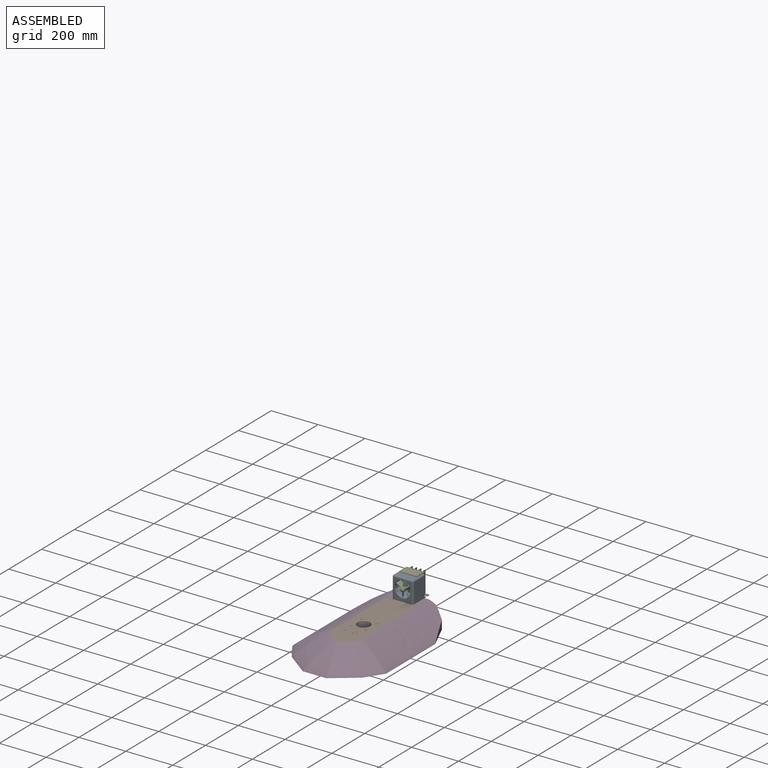
[diagram: assembled view]
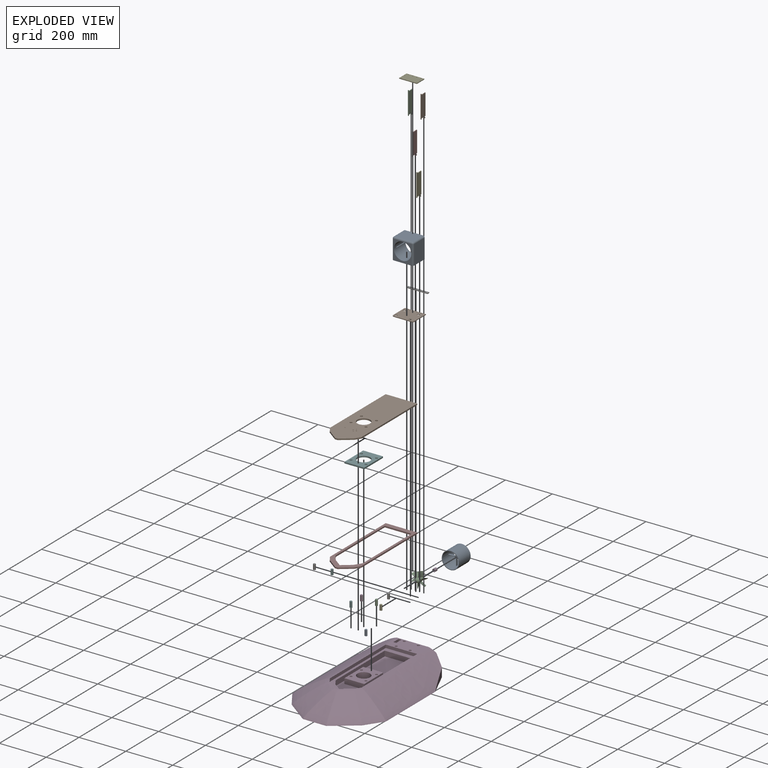
[diagram: exploded view]
GUIDED TOUR — MATED ASSEMBLY (Onshape document 7acfbcd206be1fce4d0c6893, AutoMate assembly 7acfbcd206be1fce4d0c6893_8e14f6b1c309a6c6db7eb92d_22dd7e8f04754dd25be5041a_default)

This assembly has 23 components, labeled P0..P22 below (a component is one placed occurrence of a part; the same part can appear more than once), held together by 28 mates. A mate is a constraint between two components; its type names the relative motion it leaves free:
  FASTENED — locks the two components together rigidly (no relative motion),
  REVOLUTE — leaves rotation about the listed axis free (a hinge),
  SLIDER — leaves translation along the listed axis free.
Axis/direction vectors are unit vectors and 'through' points are millimeter coordinates, both in the assembly's world frame.

MATES
  1. FASTENED "Fastened 8": P8 <-> P3, direction (0.000, 0.000, -1.000) through (50.37, 21.12, -48.16) mm
  2. SLIDER "Slider 1": P3 <-> P17, axis (0.000, 0.000, -1.000) through (85.71, 283.12, -31.66) mm
  3. FASTENED "Fastened 9": P5 <-> P3, direction (0.000, 0.000, -1.000) through (-13.63, 21.12, -48.16) mm
  4. REVOLUTE "Revolute 12": P18 <-> P20, axis (0.000, 0.000, 1.000) through (-3.63, 357.12, 71.84) mm
  5. FASTENED "Fastened 7": P15 <-> P3, direction (0.000, 0.000, 1.000) through (85.71, 283.12, -38.16) mm
  6. FASTENED "Fastened 6": P0 <-> P12, direction (0.000, 0.000, -1.000) through (-11.63, 293.12, -13.16) mm
  7. REVOLUTE "Revolute 2": P7 <-> P1, axis (0.000, 0.000, -1.000) through (14.37, 357.12, -26.16) mm
  8. REVOLUTE "Revolute 7": P6 <-> P4, axis (0.000, 0.000, -1.000) through (31.61, 377.11, -25.76) mm
  9. FASTENED "Fastened 3": P12 <-> P3, direction (0.000, 0.000, -1.000) through (-11.63, 293.12, -35.16) mm
  10. FASTENED "Fastened 14": P16 <-> P19, direction (0.000, -1.000, 0.000) through (23.37, 318.12, 23.34) mm
  11. FASTENED "Fastened 12": P13 <-> P3, direction (0.000, 0.000, 1.000) through (-13.63, 85.12, -32.16) mm
  12. FASTENED "Fastened 1": P21 <-> P3, direction (0.000, 0.000, -1.000) through (48.37, 343.12, -35.16) mm
  13. REVOLUTE "Revolute 8": P6 <-> P9, axis (0.000, 0.000, -1.000) through (49.61, 377.11, -25.76) mm
  14. REVOLUTE "Revolute 11": P7 <-> P20, axis (0.000, 0.000, 1.000) through (14.37, 357.12, 71.84) mm
  15. FASTENED "Fastened 4": P22 <-> P3, direction (0.000, 0.000, -1.000) through (-11.63, 343.12, -35.16) mm
  16. FASTENED "Fastened 10": P11 <-> P3, direction (0.000, 0.000, -1.000) through (-13.63, 85.12, -48.16) mm
  17. FASTENED "Fastened 5": P1 <-> P3, direction (0.000, 0.000, -1.000) through (-11.63, 293.12, -25.16) mm
  18. REVOLUTE "Revolute 5": P18 <-> P6, axis (0.000, 0.000, -1.000) through (-4.39, 377.11, -29.76) mm
  19. FASTENED "Fastened 2": P14 <-> P3, direction (0.000, 0.000, -1.000) through (48.37, 293.12, -35.16) mm
  20. REVOLUTE "Revolute 4": P9 <-> P1, axis (0.000, 0.000, -1.000) through (50.37, 357.12, -26.16) mm
  21. REVOLUTE "Revolute 9": P9 <-> P20, axis (0.000, 0.000, 1.000) through (50.37, 357.12, 71.84) mm
  22. REVOLUTE "Revolute 10": P4 <-> P20, axis (0.000, 0.000, 1.000) through (32.37, 357.12, 71.84) mm
  23. REVOLUTE "Revolute 6": P6 <-> P7, axis (0.000, 0.000, -1.000) through (13.61, 377.11, -25.76) mm
  24. REVOLUTE "Revolute 1": P18 <-> P1, axis (0.000, 0.000, -1.000) through (-3.63, 357.12, -26.16) mm
  25. FASTENED "Fastened 13": P20 <-> P0, direction (0.000, 0.000, -1.000) through (61.37, 316.12, 67.84) mm
  26. FASTENED "Fastened 11": P2 <-> P3, direction (0.000, 0.000, -1.000) through (50.37, 85.12, -48.16) mm
  27. REVOLUTE "Revolute 13": P10 <-> P19, axis (0.000, 1.000, 0.000) through (23.37, 313.12, 23.34) mm
  28. REVOLUTE "Revolute 3": P4 <-> P1, axis (0.000, 0.000, -1.000) through (32.37, 357.12, -26.16) mm

ASSEMBLY ORDER
  1. P8 — the base component [order verified]
  2. P5 [order verified]
  3. P2 [order verified]
  4. P11 [order verified]
  5. P13 [order verified]
  6. P10 [order verified]
  7. P19 [order verified]
  8. P15 [order verified]
  9. P17 [order verified]
  10. P3 [order verified]
  11. P16 [order verified]
  12. P9 [order verified]
  13. P4 [order verified]
  14. P7 [order verified]
  15. P18 [order verified]
  16. P0 [order verified]
  17. P1 [order verified]
  18. P6 [order verified]
  19. P14 [order verified]
  20. P21 [order verified]
  21. P12 [order verified]
  22. P20 [order verified]
  23. P22 [order verified]
(P3, P13, P19 verified with a relaxed clearance tolerance: the source model stores slight part interference there.)
Order-tag legend:
  [order verified] — this step's position reverses a verified removal order: the component was checked to insert without passing through the ones already placed.

Of the 23 components, 1 carries the full construction recipe — the FeatureScript program that regenerates the part's solid from scratch; the rest are supplied as boundary geometry only.
Because this assembly has more than 12 components, the tour below covers the 12 most significant ones individually (every recipe-attached component first, then the largest by part volume), in assembly order; the remaining 11 are summarized together in a grouped section at the end.
Each toured component is shown spotlighted twice — in the assembled view, then in the exploded view, where a leader line traces a displaced component back to its assembled socket (saturated green if recipe-attached, orange if geometry-only; every other component desaturated gray) — followed by its recipe or geometry summary and the mates that hold it.
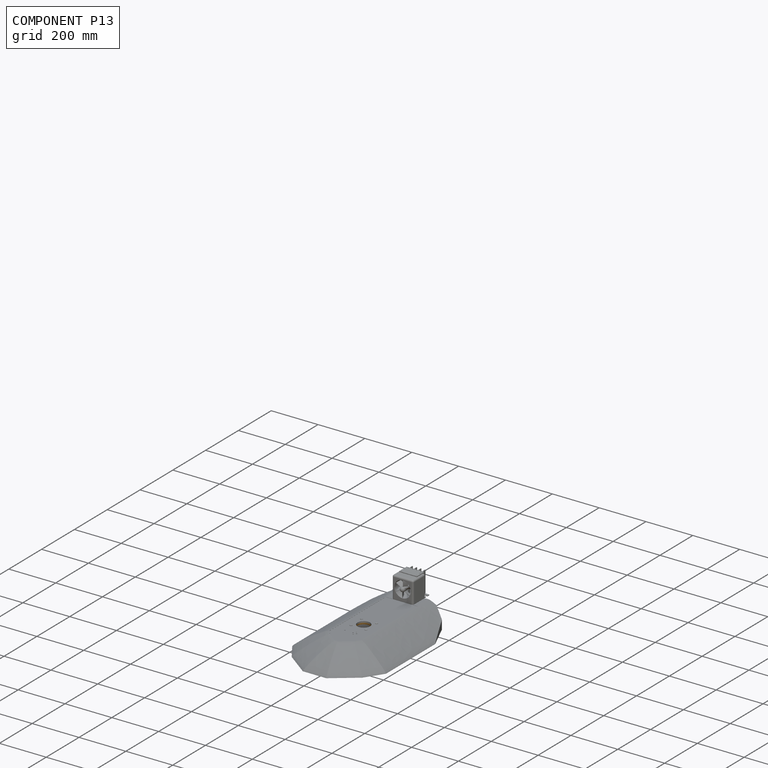
[diagram: component P13 — assembled]
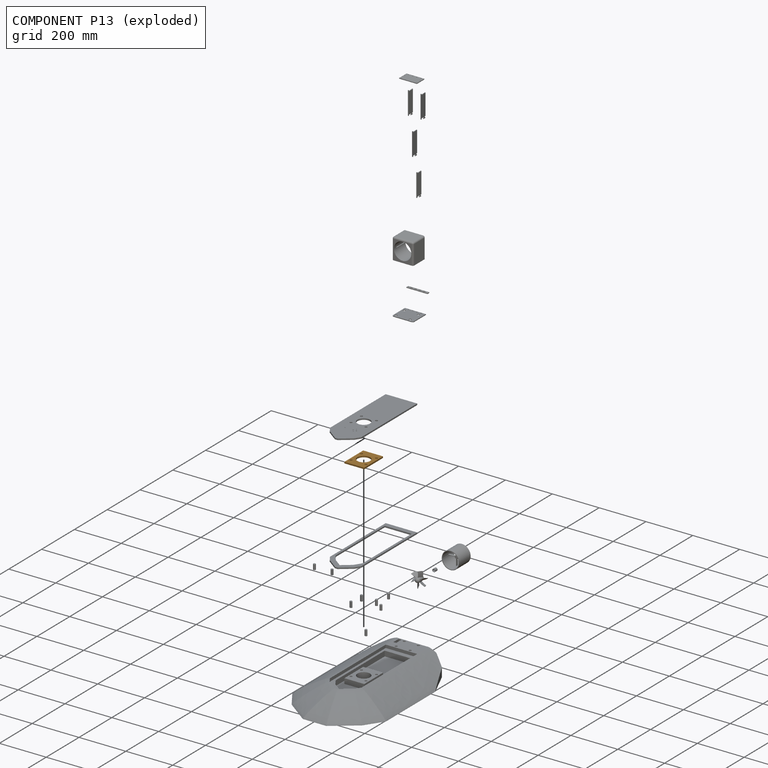
[diagram: component P13 — exploded]
COMPONENT P13 — geometry summary (no construction recipe available for this part):
  bounding box: 114.7 x 84.7 x 6.0 mm
  B-rep topology: 1 solid, 11 faces, 54 edges
  volume: 42373 mm^3 (73% of its bounding box)
  symmetry: 2-fold rotationally symmetric about the x axis; 2-fold rotationally symmetric about the y axis; 2-fold rotationally symmetric about the z axis; mirror-symmetric across its x mid-plane, y mid-plane, z mid-plane
Held by: FASTENED mate "Fastened 12" to P3.
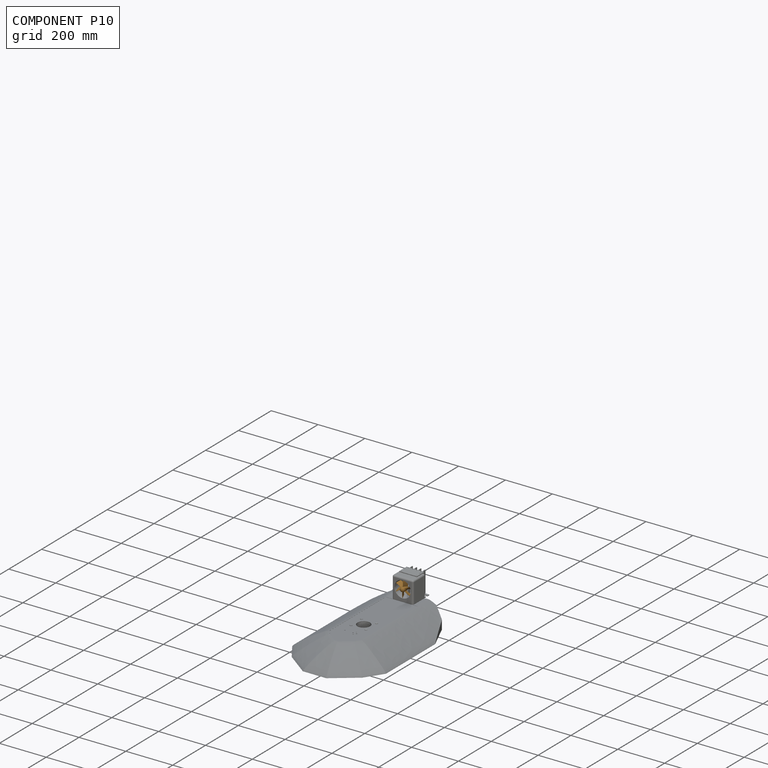
[diagram: component P10 — assembled]
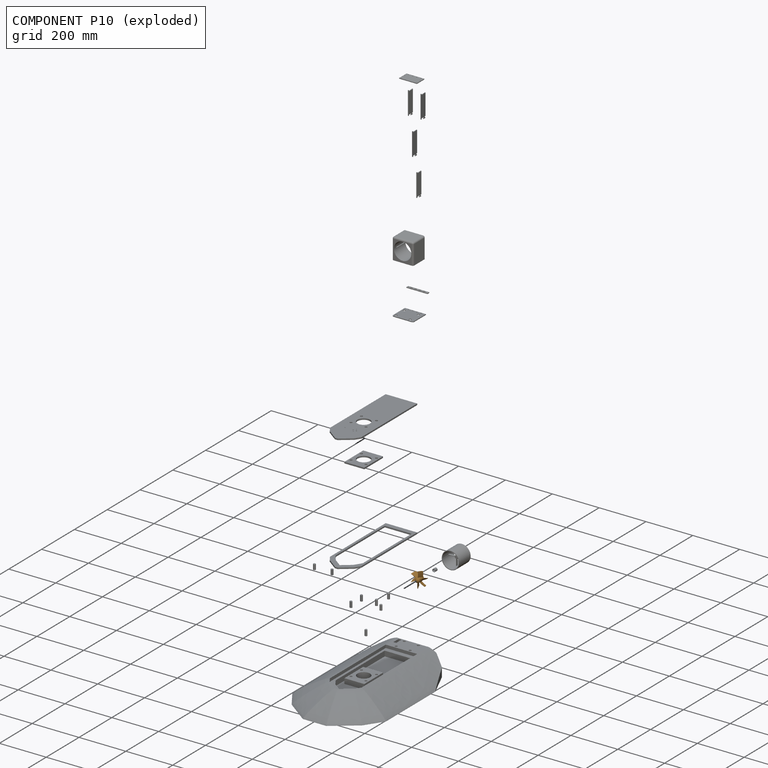
[diagram: component P10 — exploded]
COMPONENT P10 — geometry summary (no construction recipe available for this part):
  bounding box: 67.0 x 61.7 x 40.0 mm
  B-rep topology: 1 solid, 46 faces, 237 edges
  volume: 12002 mm^3 (7% of its bounding box)
  symmetry: 6-fold rotationally symmetric about the z axis
Held by: REVOLUTE mate "Revolute 13" to P19.
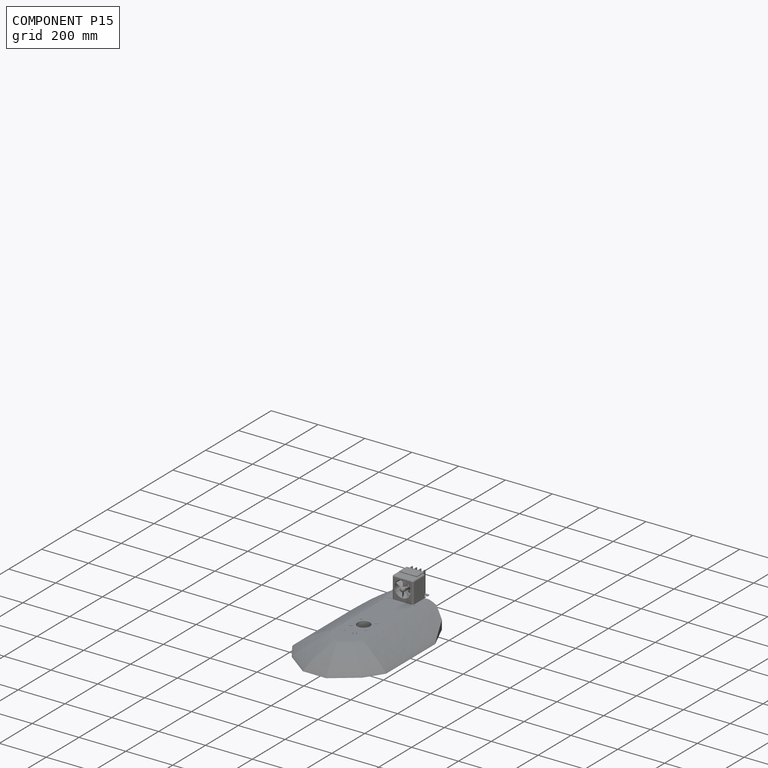
[diagram: component P15 — assembled]
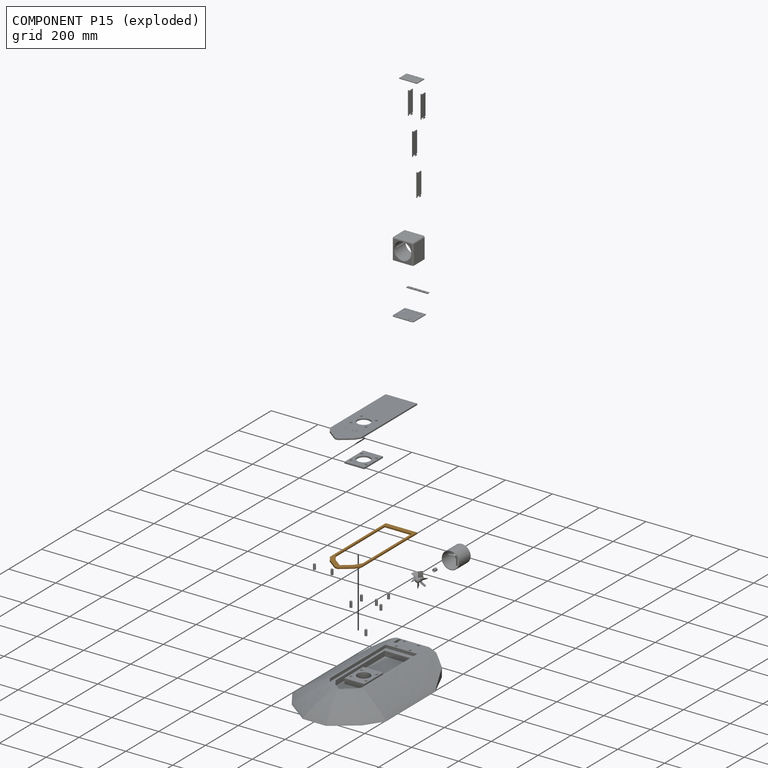
[diagram: component P15 — exploded]
COMPONENT P15 — geometry summary (no construction recipe available for this part):
  bounding box: 397.3 x 134.7 x 6.0 mm
  B-rep topology: 1 solid, 17 faces, 90 edges
  volume: 74186 mm^3 (23% of its bounding box)
  symmetry: 2-fold rotationally symmetric about the y axis; mirror-symmetric across its x mid-plane, z mid-plane
Held by: FASTENED mate "Fastened 7" to P3.
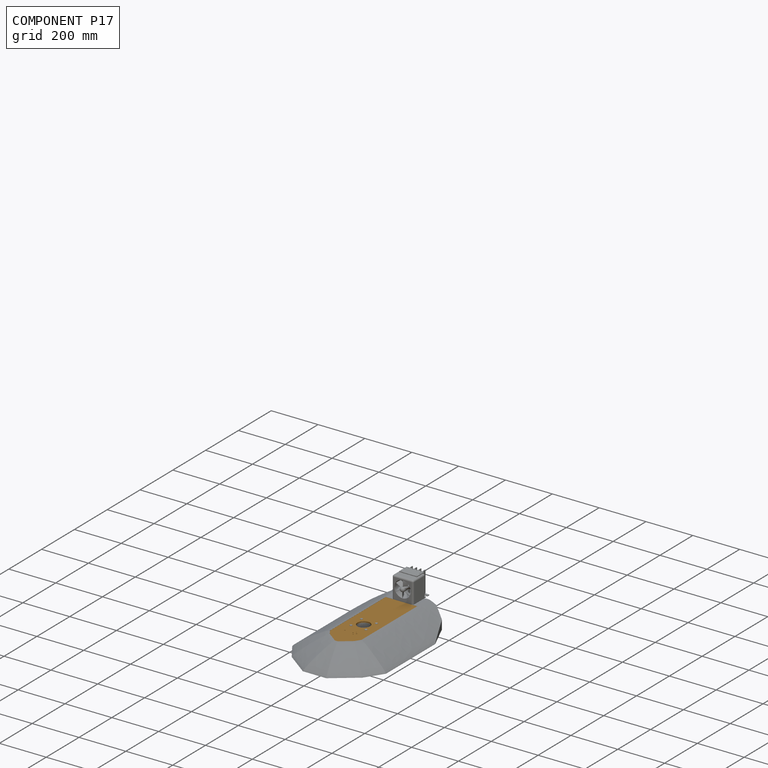
[diagram: component P17 — assembled]
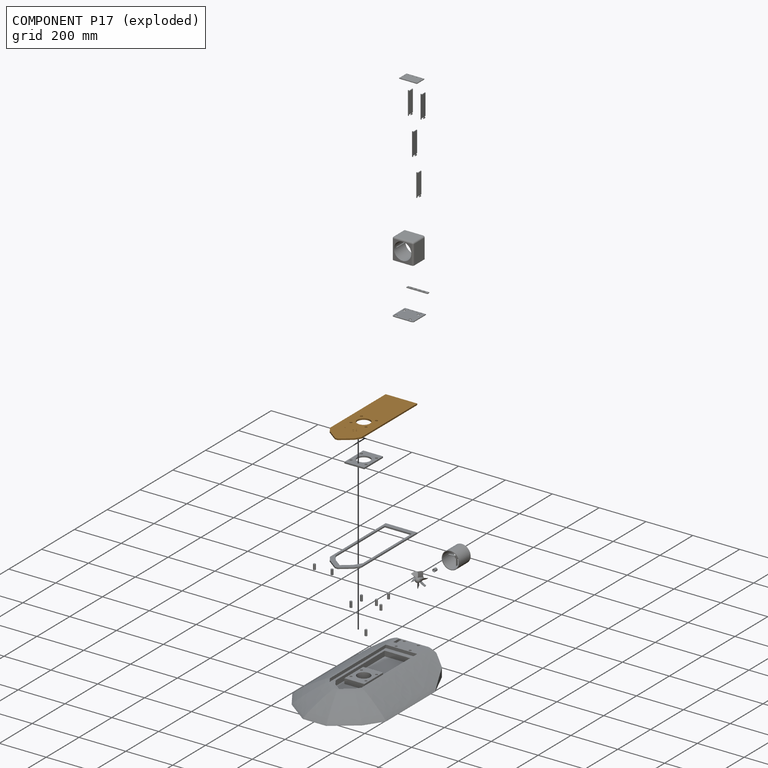
[diagram: component P17 — exploded]
COMPONENT P17 — geometry summary (no construction recipe available for this part):
  bounding box: 397.3 x 134.7 x 6.0 mm
  B-rep topology: 1 solid, 20 faces, 108 edges
  volume: 286712 mm^3 (89% of its bounding box)
  symmetry: mirror-symmetric across its z mid-plane
Held by: SLIDER mate "Slider 1" to P3.
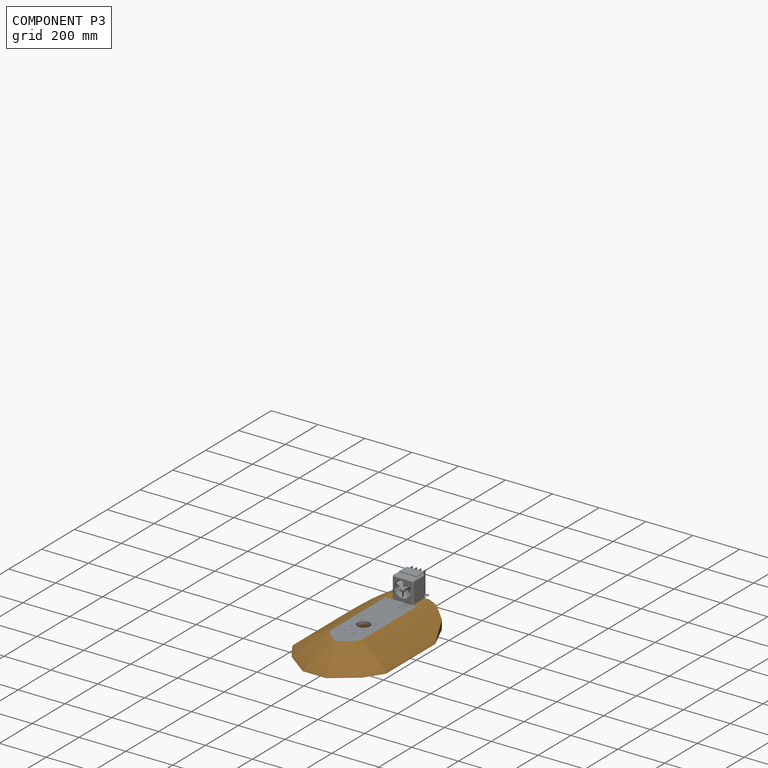
[diagram: component P3 — assembled]
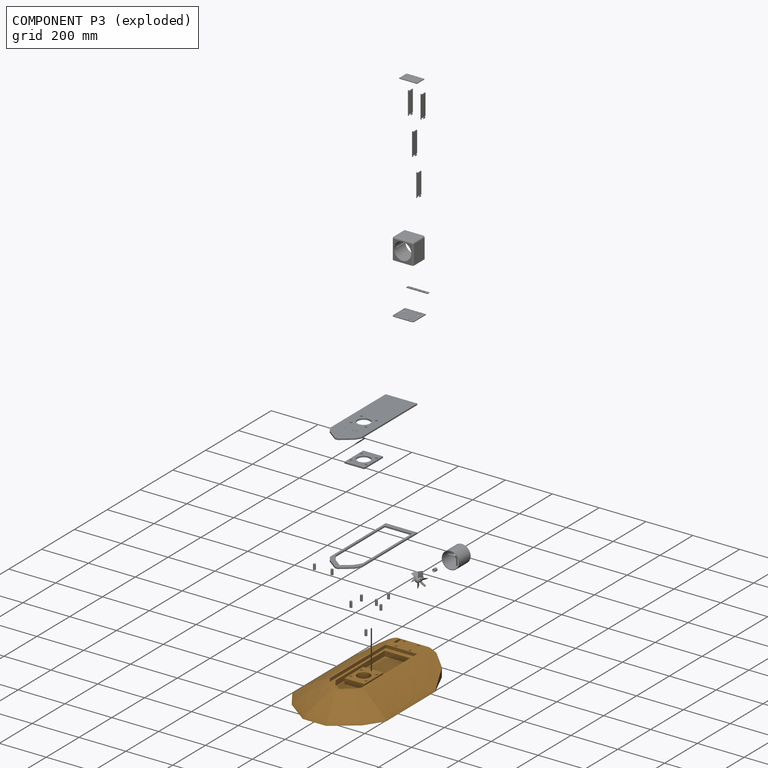
[diagram: component P3 — exploded]
COMPONENT P3 — geometry summary (no construction recipe available for this part):
  bounding box: 626.3 x 402.5 x 80.0 mm
  B-rep topology: 1 solid, 85 faces, 422 edges
  volume: 10002666 mm^3 (50% of its bounding box)
Held by: FASTENED mate "Fastened 8" to P8; SLIDER mate "Slider 1" to P17; FASTENED mate "Fastened 9" to P5; FASTENED mate "Fastened 7" to P15; FASTENED mate "Fastened 3" to P12; FASTENED mate "Fastened 12" to P13; FASTENED mate "Fastened 1" to P21; FASTENED mate "Fastened 4" to P22; FASTENED mate "Fastened 10" to P11; FASTENED mate "Fastened 5" to P1; FASTENED mate "Fastened 2" to P14; FASTENED mate "Fastened 11" to P2.
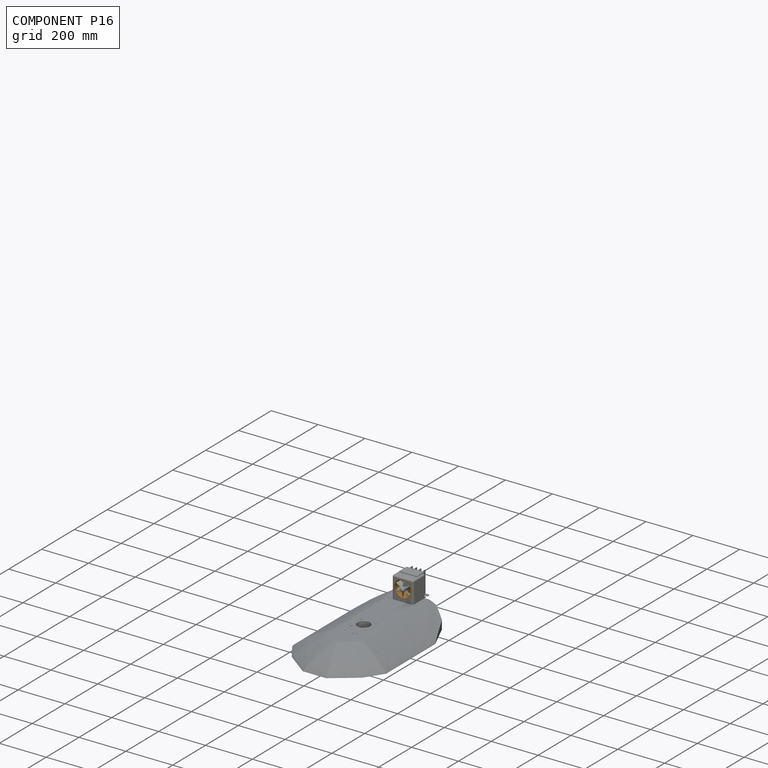
[diagram: component P16 — assembled]
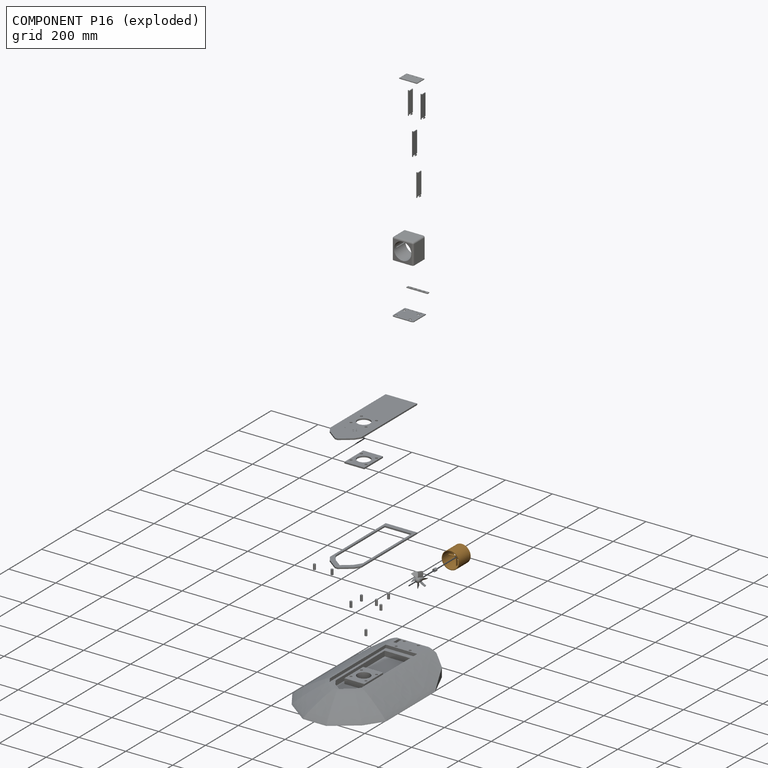
[diagram: component P16 — exploded]
COMPONENT P16 — geometry summary (no construction recipe available for this part):
  bounding box: 74.5 x 74.5 x 70.0 mm
  B-rep topology: 1 solid, 18 faces, 114 edges
  volume: 42455 mm^3 (11% of its bounding box)
  symmetry: 4-fold rotationally symmetric about the z axis; mirror-symmetric across its x mid-plane, y mid-plane
Held by: FASTENED mate "Fastened 14" to P19.
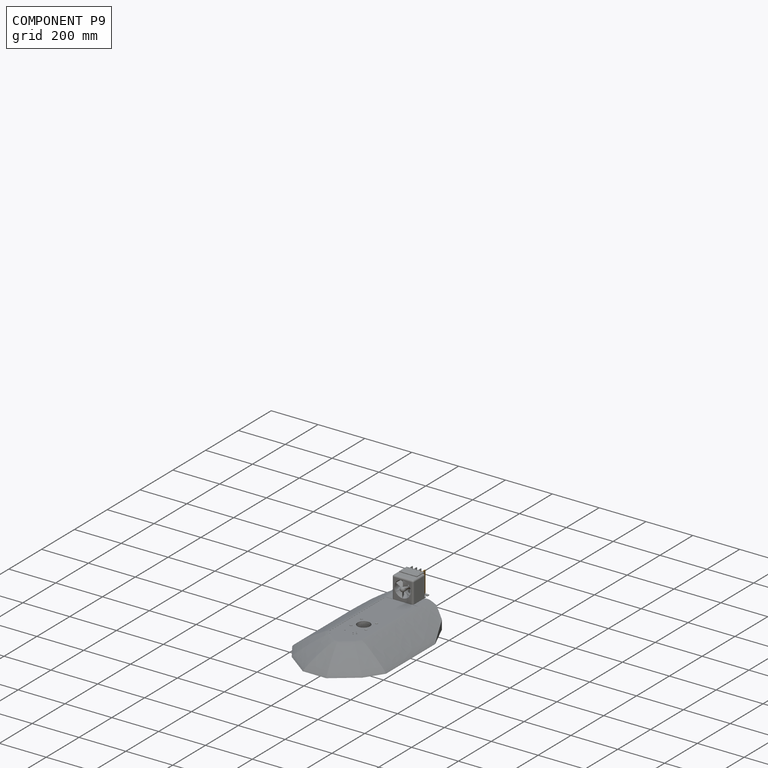
[diagram: component P9 — assembled]
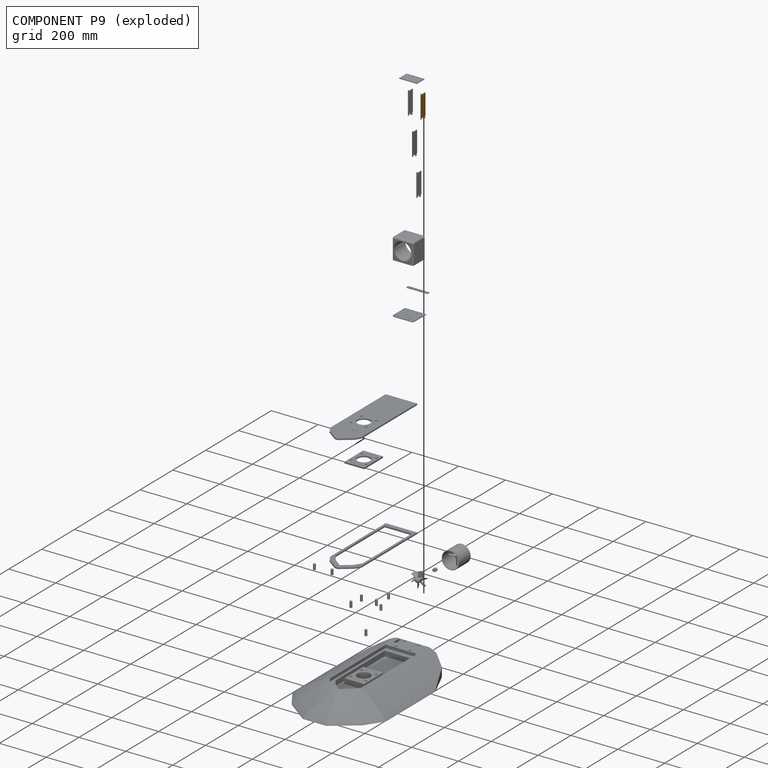
[diagram: component P9 — exploded]
COMPONENT P9 — geometry summary (no construction recipe available for this part):
  bounding box: 101.6 x 28.0 x 3.0 mm
  B-rep topology: 1 solid, 22 faces, 120 edges
  volume: 7796 mm^3 (91% of its bounding box)
  symmetry: mirror-symmetric across its y mid-plane
Held by: REVOLUTE mate "Revolute 8" to P6; REVOLUTE mate "Revolute 4" to P1; REVOLUTE mate "Revolute 9" to P20.
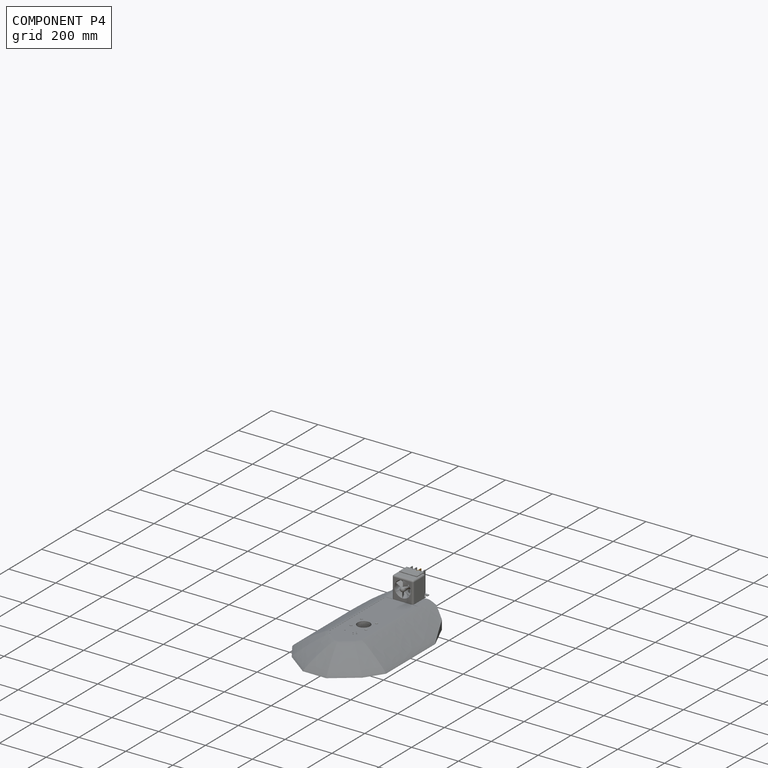
[diagram: component P4 — assembled]
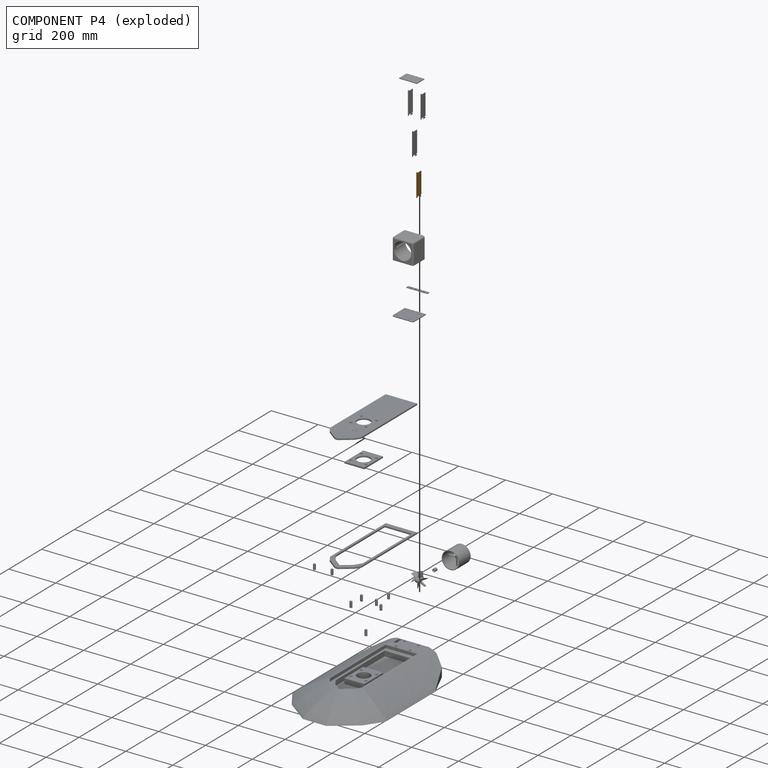
[diagram: component P4 — exploded]
COMPONENT P4 — geometry summary (no construction recipe available for this part):
  bounding box: 101.6 x 28.0 x 3.0 mm
  B-rep topology: 1 solid, 22 faces, 120 edges
  volume: 7796 mm^3 (91% of its bounding box)
  symmetry: mirror-symmetric across its y mid-plane
Held by: REVOLUTE mate "Revolute 7" to P6; REVOLUTE mate "Revolute 10" to P20; REVOLUTE mate "Revolute 3" to P1.
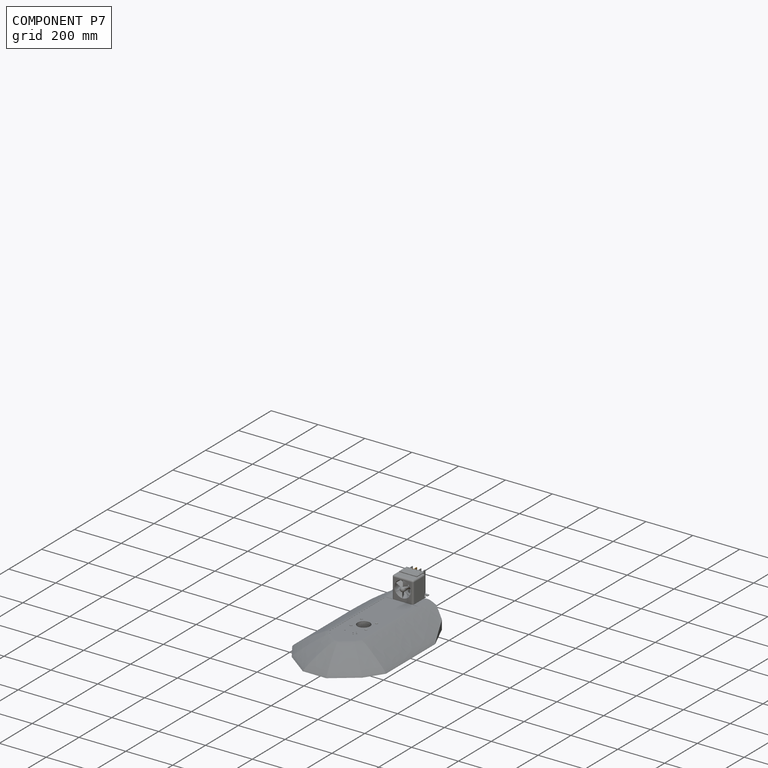
[diagram: component P7 — assembled]
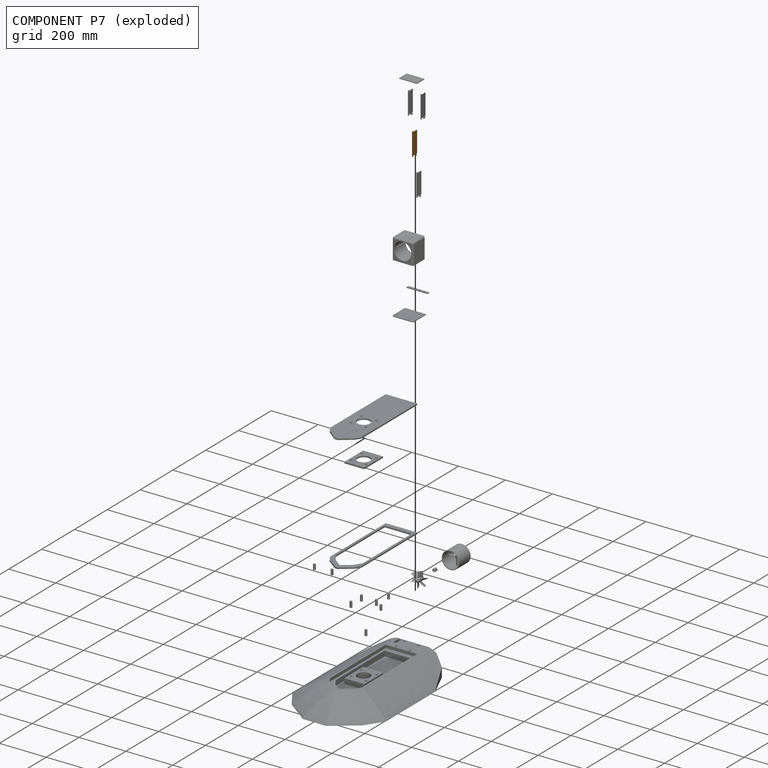
[diagram: component P7 — exploded]
COMPONENT P7 — geometry summary (no construction recipe available for this part):
  bounding box: 101.6 x 28.0 x 3.0 mm
  B-rep topology: 1 solid, 22 faces, 120 edges
  volume: 7796 mm^3 (91% of its bounding box)
  symmetry: mirror-symmetric across its y mid-plane
Held by: REVOLUTE mate "Revolute 2" to P1; REVOLUTE mate "Revolute 11" to P20; REVOLUTE mate "Revolute 6" to P6.
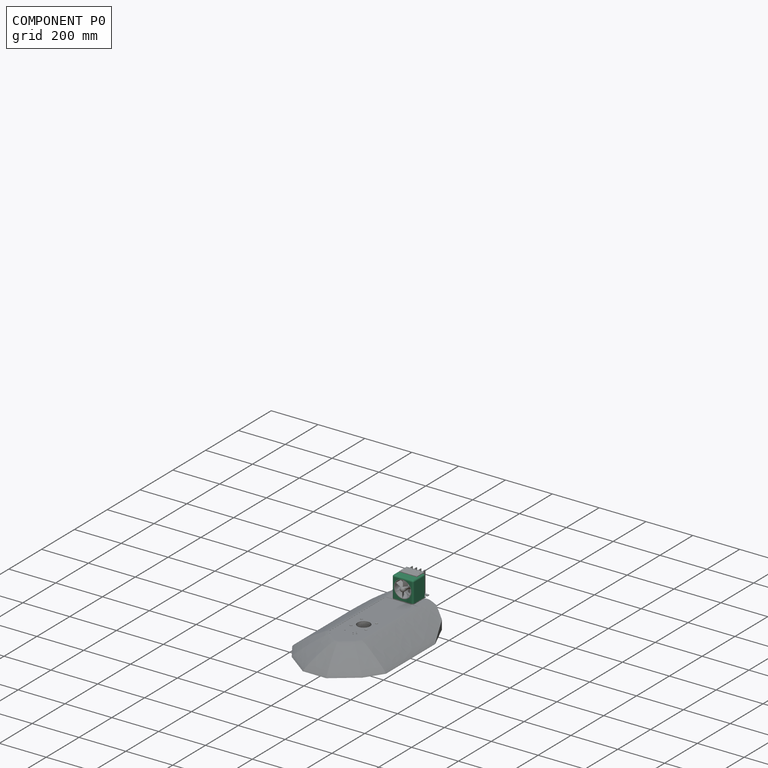
[diagram: component P0 — assembled]
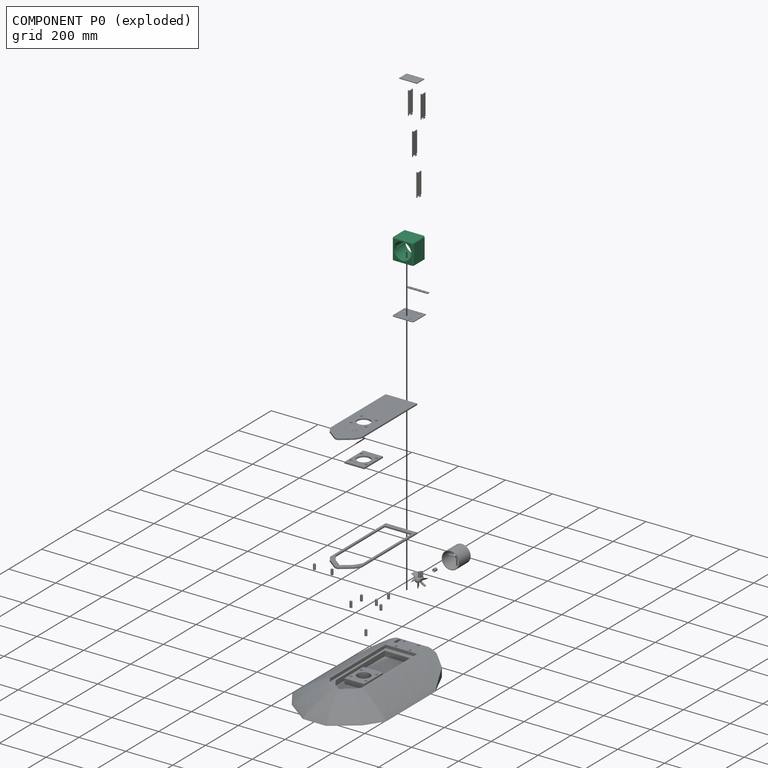
[diagram: component P0 — exploded]
COMPONENT P0 — recipe-attached (CADFS 00208151, mesh-verified: the recipe's output STEP matches this component's geometry to below the mesh-comparison resolution (tessellation chordal tolerance ~0.218 mm)).
Held by: FASTENED mate "Fastened 6" to P12; FASTENED mate "Fastened 13" to P20.
Construction recipe (FeatureScript — the CAD program that rebuilds this solid; sketch coordinates are in the units given by the * unit suffixes, e.g. mm):

FeatureScript 1511;
import(path : "onshape/std/geometry.fs", version : "1511.0");
import(path : "onshape/std/common.fs", version : "1511.0");
const mm = millimeter;
const VERTEX = EntityType.VERTEX;
const EDGE = EntityType.EDGE;
const FACE = EntityType.FACE;
const BODY = EntityType.BODY;
function v(x, y){return vector(x, y);}
function OD(order){return orderDisambiguation(order);}
function OSD(set){return originalSetDisambiguation(set);}
function TD(topology){return topologyDisambiguation(topology);}
function TDD(query){return trueDependencyDisambiguation(query);}
function sQuery(a, b, c) {return sketchEntityQuery(a, b, c);}

annotation { "Feature Type Name" : "Feature", "Feature Type Description" : "" }
export const myFeature = defineFeature(function(context is Context, id is Id, definition is map)
    precondition{}
    {
        {
            var Q0;
            Q0=qCreatedBy(makeId("Top.planeOp"),FACE);
            var sketch = newSketch(context, id + "F0", { "sketchPlane" : qUnion([Q0])});
            skLineSegment(sketch, "E0.bottom", {"start": v(45, 35) * mm, "end": v(-45, 35) * mm});
            skLineSegment(sketch, "E0.top", {"start": v(45, -35) * mm, "end": v(-45, -35) * mm});
            skLineSegment(sketch, "E0.left", {"start": v(45, 35) * mm, "end": v(45, -35) * mm});
            skLineSegment(sketch, "E0.right", {"start": v(-45, 35) * mm, "end": v(-45, -35) * mm});
            skPoint(sketch, "E0.middle", {"position": v(0, 0) * mm});
            skSolve(sketch);
        }
        {
            var Q0;
            Q0=makeQuery(id+"F0.imprint","IMPRINT",FACE,{"disambiguationData":[TD([[makeQuery(id+"F0.imprint","IMPRINT",EDGE,{"derivedFrom":sQuery(id+"F0.wireOp",EDGE,"E0.bottom")}),1.0]])]});
            extrude(context, id + "F1", {"entities" : qUnion([Q0]), "depth" : 90 * mm});
        }
        {
            var Q0;
            Q0=makeQuery(id+"F1.opExtrude","SWEPT_FACE",FACE,{"disambiguationData":[OSD([sQuery(id+"F0.wireOp",EDGE,"E0.top")])]});
            var sketch = newSketch(context, id + "F2", { "sketchPlane" : qUnion([Q0])});
            skCircle(sketch, "E1", {"center": v(0, 45.5) * mm, "radius": 37 * mm});
            skSolve(sketch);
        }
        {
            var Q0;
            Q0=makeQuery(id+"F2.imprint","IMPRINT",FACE,{"disambiguationData":[TD([[makeQuery(id+"F2.imprint","IMPRINT",EDGE,{"derivedFrom":sQuery(id+"F2.wireOp",EDGE,"E1")}),1.0]])]});
            extrude(context, id + "F3", {"entities" : qUnion([Q0]), "operationType" : NewBodyOperationType.REMOVE, "oppositeDirection" : true, "depth" : 70 * mm});
        }
        {
            var Q0;
            Q0=makeQuery(id+"F1.opExtrude","CAP_FACE",FACE,{"disambiguationData":[OSD([sQuery(id+"F0.wireOp",EDGE,"E0.bottom"),sQuery(id+"F0.wireOp",EDGE,"E0.top"),sQuery(id+"F0.wireOp",EDGE,"E0.left"),sQuery(id+"F0.wireOp",EDGE,"E0.right")])],"isStart":true});
            var sketch = newSketch(context, id + "F4", { "sketchPlane" : qUnion([Q0])});
            skCircle(sketch, "E2", {"center": v(-35, -25) * mm, "radius": 5 * mm});
            skCircle(sketch, "E3.0.1.0", {"center": v(-35, 25) * mm, "radius": 5 * mm});
            skCircle(sketch, "E3.1.0.0", {"center": v(25, -25) * mm, "radius": 5 * mm});
            skCircle(sketch, "E3.1.1.0", {"center": v(25, 25) * mm, "radius": 5 * mm});
            skLineSegment(sketch, "E3.direction1", {"start": v(-35, -25) * mm, "end": v(25, -25) * mm, "construction": true});
            skLineSegment(sketch, "E3.direction2", {"start": v(-35, -25) * mm, "end": v(-35, 25) * mm, "construction": true});
            skSolve(sketch);
        }
        {
            var Q0;
            Q0=makeQuery(id+"F4.imprint","IMPRINT",FACE,{"disambiguationData":[TD([[makeQuery(id+"F4.imprint","IMPRINT",EDGE,{"derivedFrom":sQuery(id+"F4.wireOp",EDGE,"E3.0.1.0")}),1.0]])]});
            var Q1;
            Q1=makeQuery(id+"F4.imprint","IMPRINT",FACE,{"disambiguationData":[TD([[makeQuery(id+"F4.imprint","IMPRINT",EDGE,{"derivedFrom":sQuery(id+"F4.wireOp",EDGE,"E2")}),1.0]])]});
            var Q2;
            Q2=makeQuery(id+"F4.imprint","IMPRINT",FACE,{"disambiguationData":[TD([[makeQuery(id+"F4.imprint","IMPRINT",EDGE,{"derivedFrom":sQuery(id+"F4.wireOp",EDGE,"E3.1.1.0")}),1.0]])]});
            var Q3;
            Q3=makeQuery(id+"F4.imprint","IMPRINT",FACE,{"disambiguationData":[TD([[makeQuery(id+"F4.imprint","IMPRINT",EDGE,{"derivedFrom":sQuery(id+"F4.wireOp",EDGE,"E3.1.0.0")}),1.0]])]});
            var Q4;
            Q4=sQuery(id+"F4.wireOp",EDGE,"E3.0.1.0");
            var Q5;
            Q5=sQuery(id+"F4.wireOp",EDGE,"E2");
            var Q6;
            Q6=sQuery(id+"F4.wireOp",EDGE,"E3.1.1.0");
            var Q7;
            Q7=sQuery(id+"F4.wireOp",EDGE,"E3.1.0.0");
            extrude(context, id + "F5", {"entities" : qUnion([Q0, Q1, Q2, Q3]), "operationType" : NewBodyOperationType.REMOVE, "surfaceEntities" : qUnion([Q4, Q5, Q6, Q7]), "oppositeDirection" : true, "depth" : 9 * mm});
        }
        {
            var Q0;
            Q0=makeQuery(id+"F1.opExtrude","CAP_EDGE",EDGE,{"disambiguationData":[OSD([sQuery(id+"F0.wireOp",EDGE,"E0.top")])],"isStart":false});
            var Q1;
            Q1=makeQuery(id+"F1.opExtrude","CAP_EDGE",EDGE,{"disambiguationData":[OSD([sQuery(id+"F0.wireOp",EDGE,"E0.left")])],"isStart":false});
            var Q2;
            Q2=makeQuery(id+"F1.opExtrude","CAP_EDGE",EDGE,{"disambiguationData":[OSD([sQuery(id+"F0.wireOp",EDGE,"E0.right")])],"isStart":false});
            var Q3;
            Q3=makeQuery(id+"F1.opExtrude","SWEPT_EDGE",EDGE,{"disambiguationData":[OSD([sQuery(id+"F0.wireOp",EDGE,"E0.top"),sQuery(id+"F0.wireOp",EDGE,"E0.left")])]});
            var Q4;
            Q4=makeQuery(id+"F1.opExtrude","SWEPT_EDGE",EDGE,{"disambiguationData":[OSD([sQuery(id+"F0.wireOp",EDGE,"E0.top"),sQuery(id+"F0.wireOp",EDGE,"E0.right")])]});
            fillet(context, id + "F6", {"entities" : qUnion([Q0, Q1, Q2, Q3, Q4]), "radius" : 7 * mm, "tangentPropagation" : true, "allowEdgeOverflow" : false});
        }
        {
            var Q0;
            Q0=makeQuery(id+"F1.opExtrude","SWEPT_FACE",FACE,{"disambiguationData":[OSD([sQuery(id+"F0.wireOp",EDGE,"E0.bottom")])]});
            var sketch = newSketch(context, id + "F7", { "sketchPlane" : qUnion([Q0])});
            skLineSegment(sketch, "E4", {"start": v(36.97, 47) * mm, "end": v(41.97, 47) * mm});
            skLineSegment(sketch, "E5", {"start": v(41.97, 47) * mm, "end": v(41.97, 45.5) * mm});
            skLineSegment(sketch, "E6", {"start": v(41.97, 45.5) * mm, "end": v(41.97, 44) * mm});
            skLineSegment(sketch, "E7", {"start": v(41.97, 44) * mm, "end": v(36.97, 44) * mm});
            skLineSegment(sketch, "E8", {"start": v(-36.97, 47) * mm, "end": v(-41.97, 47) * mm});
            skLineSegment(sketch, "E9", {"start": v(-41.97, 47) * mm, "end": v(-41.97, 45.5) * mm});
            skLineSegment(sketch, "E10", {"start": v(-41.97, 45.5) * mm, "end": v(-41.97, 44) * mm});
            skLineSegment(sketch, "E11", {"start": v(-41.97, 44) * mm, "end": v(-36.97, 44) * mm});
            skSolve(sketch);
        }
        {
            var Q0;
            {var subQ1=sQuery(id+"F7.wireOp",EDGE,"E8");Q0=makeQuery(id+"F7.imprint","IMPRINT",FACE,{"disambiguationData":[TD([[makeQuery(id+"F7.imprint","IMPRINT",EDGE,{"derivedFrom":subQ1}),1.0]])]});}
            var Q1;
            {var subQ1=sQuery(id+"F7.wireOp",EDGE,"E4");Q1=makeQuery(id+"F7.imprint","IMPRINT",FACE,{"disambiguationData":[TD([[makeQuery(id+"F7.imprint","IMPRINT",EDGE,{"derivedFrom":subQ1}),-1.0]])]});}
            extrude(context, id + "F8", {"entities" : qUnion([Q0, Q1]), "operationType" : NewBodyOperationType.REMOVE, "oppositeDirection" : true, "depth" : 55 * mm});
        }
    });
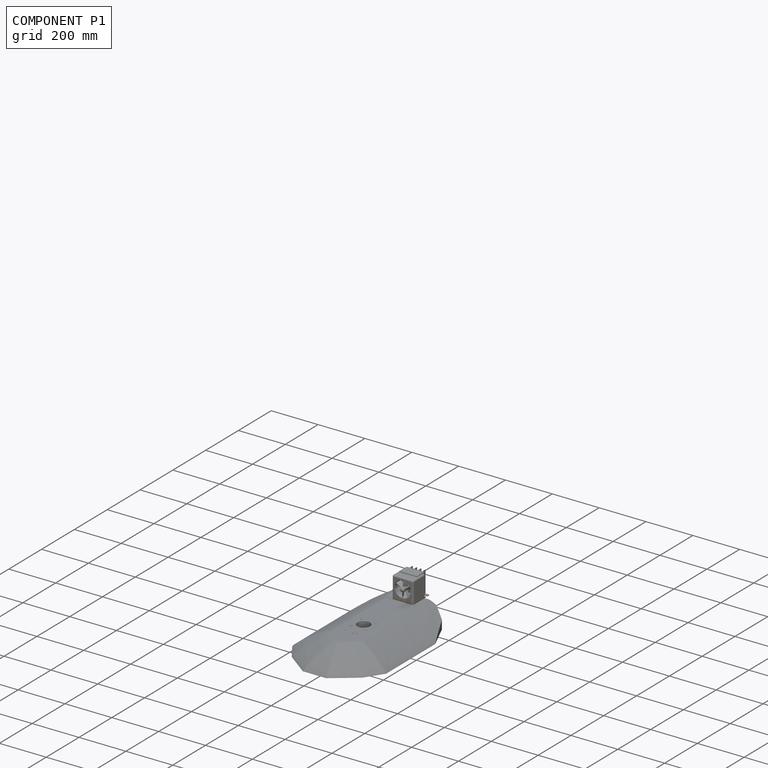
[diagram: component P1 — assembled]
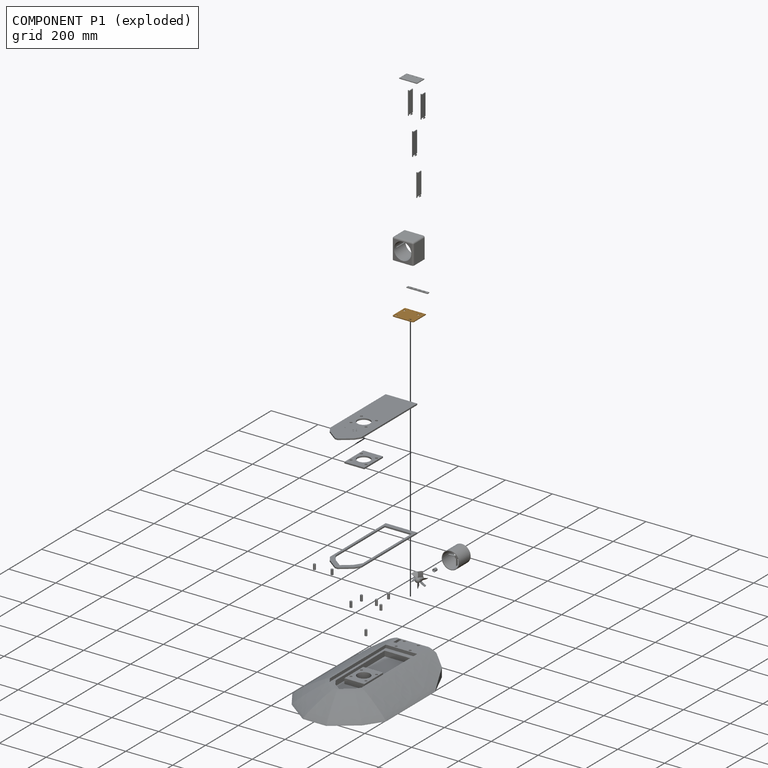
[diagram: component P1 — exploded]
COMPONENT P1 — geometry summary (no construction recipe available for this part):
  bounding box: 90.0 x 78.0 x 3.0 mm
  B-rep topology: 1 solid, 16 faces, 84 edges
  volume: 19880 mm^3 (94% of its bounding box)
  symmetry: mirror-symmetric across its z mid-plane
Held by: REVOLUTE mate "Revolute 2" to P7; FASTENED mate "Fastened 5" to P3; REVOLUTE mate "Revolute 4" to P9; REVOLUTE mate "Revolute 1" to P18; REVOLUTE mate "Revolute 3" to P4.
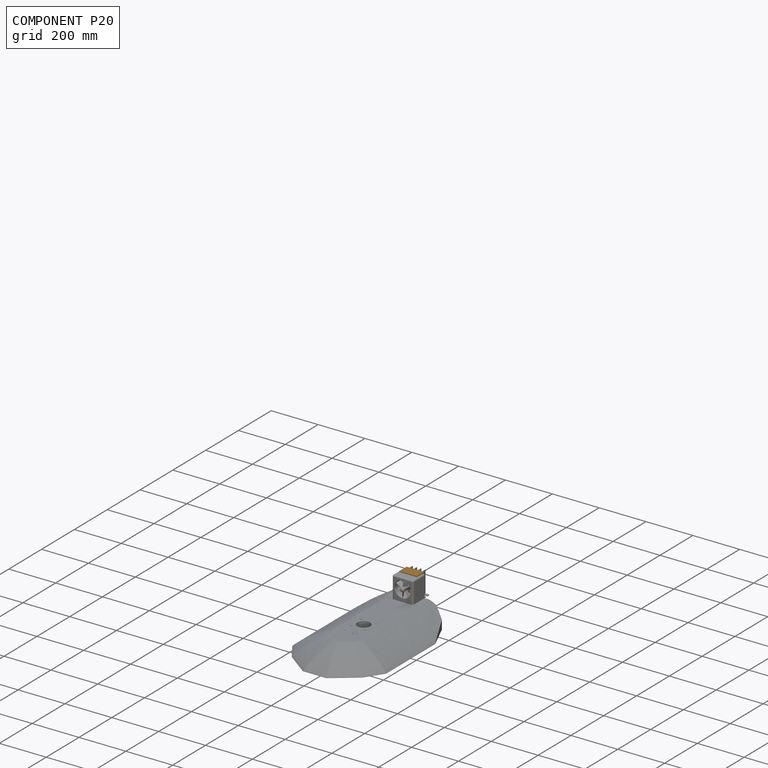
[diagram: component P20 — assembled]
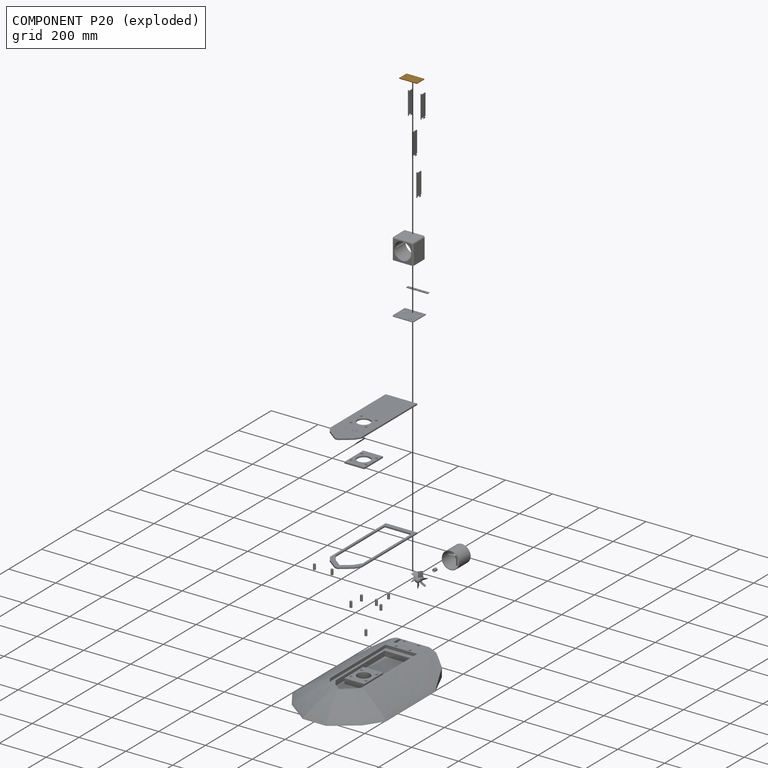
[diagram: component P20 — exploded]
COMPONENT P20 — geometry summary (no construction recipe available for this part):
  bounding box: 76.0 x 45.0 x 3.0 mm
  B-rep topology: 1 solid, 14 faces, 72 edges
  volume: 10001 mm^3 (97% of its bounding box)
  symmetry: 2-fold rotationally symmetric about the y axis; mirror-symmetric across its x mid-plane, z mid-plane
Held by: REVOLUTE mate "Revolute 12" to P18; REVOLUTE mate "Revolute 11" to P7; REVOLUTE mate "Revolute 9" to P9; REVOLUTE mate "Revolute 10" to P4; FASTENED mate "Fastened 13" to P0.
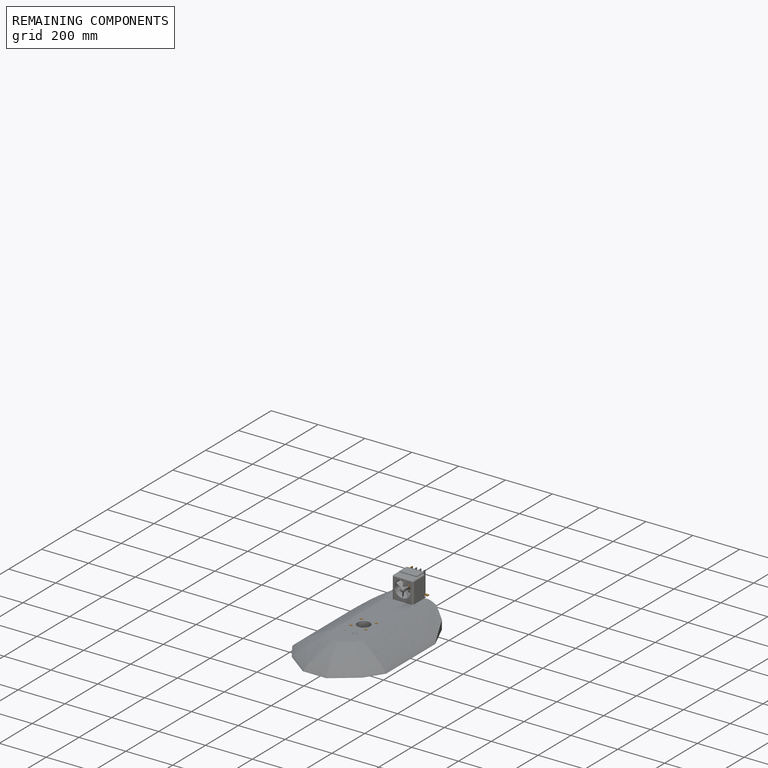
[diagram: remaining components — assembled]
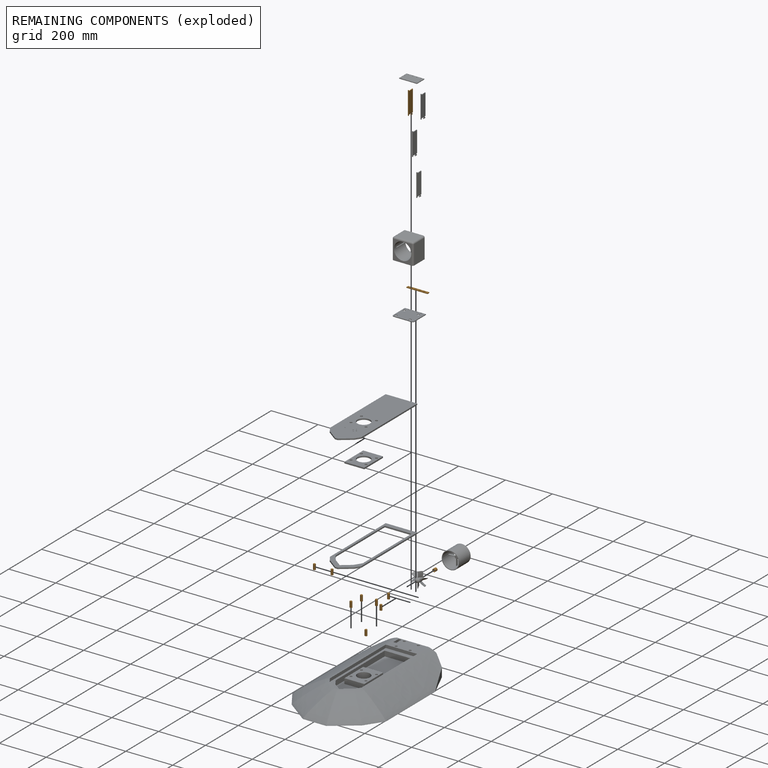
[diagram: remaining components — exploded]
REMAINING COMPONENTS (grouped) — the 11 components below fall outside the per-component tour by the significance rule stated above; both spotlight views highlight the whole group.
  P8: bounding box 24.0 x 10.0 x 10.0 mm, volume 1885 mm^3. Held by: FASTENED mate "Fastened 8" to P3.
  P5: bounding box 24.0 x 10.0 x 10.0 mm, volume 1885 mm^3. Held by: FASTENED mate "Fastened 9" to P3.
  P2: bounding box 24.0 x 10.0 x 10.0 mm, volume 1885 mm^3. Held by: FASTENED mate "Fastened 11" to P3.
  P11: bounding box 24.0 x 10.0 x 10.0 mm, volume 1885 mm^3. Held by: FASTENED mate "Fastened 10" to P3.
  P19: bounding box 14.0 x 13.0 x 13.0 mm, volume 1003 mm^3. Held by: FASTENED mate "Fastened 14" to P16; REVOLUTE mate "Revolute 13" to P10.
  P18: bounding box 101.6 x 28.0 x 3.0 mm, volume 7796 mm^3. Held by: REVOLUTE mate "Revolute 12" to P20; REVOLUTE mate "Revolute 5" to P6; REVOLUTE mate "Revolute 1" to P1.
  P6: bounding box 90.0 x 11.0 x 3.0 mm, volume 2425 mm^3. Held by: REVOLUTE mate "Revolute 7" to P4; REVOLUTE mate "Revolute 8" to P9; REVOLUTE mate "Revolute 5" to P18; REVOLUTE mate "Revolute 6" to P7.
  P14: bounding box 22.0 x 10.0 x 10.0 mm, volume 1728 mm^3. Held by: FASTENED mate "Fastened 2" to P3.
  P21: bounding box 22.0 x 10.0 x 10.0 mm, volume 1728 mm^3. Held by: FASTENED mate "Fastened 1" to P3.
  P12: bounding box 22.0 x 10.0 x 10.0 mm, volume 1728 mm^3. Held by: FASTENED mate "Fastened 6" to P0; FASTENED mate "Fastened 3" to P3.
  P22: bounding box 22.0 x 10.0 x 10.0 mm, volume 1728 mm^3. Held by: FASTENED mate "Fastened 4" to P3.
PROVENANCE & LICENSES
Assembly (occurrences, transforms, mates, per-part STEP geometry): AutoMate dataset, Zenodo record 7776208, CC0.
Construction recipes: CADFS (HuggingFace VladPyatov/CADFS, CC-BY-4.0, layered over the ABC dataset), FeatureScript reconstruction programs keyed by ABC model id.
Join: ABC meta listings map ABC model id -> Onshape documentId; within a shared document, parts are matched by geometric signature (bounding-box dims + volume at 0.1% relative tolerance, exact B-rep face/solid counts).
Verification: 1 of this assembly's 23 components carries a recipe attachment, and every attachment is mesh-verified: the CADFS STEP and the AutoMate member STEP were compared as meshes in their shared local frame (symmetric sampled-point-to-mesh distance); worst across the 1 attachment: below the mesh-comparison resolution (tessellation chordal tolerance ~0.218 mm) on a 145 mm part.
Renders: orthographic iso camera (az 35 / el 25); the floor grid conveys scale (grid pitch printed in each image; no ruler). In the exploded view each component is displaced by its stored offset vector: the offsets alone carry the explosion direction (mate normal/axis signs are not orientation cues and do not encode it), and separation distances are assigned per mate-chain, not proportionally to assembly-order depth.
